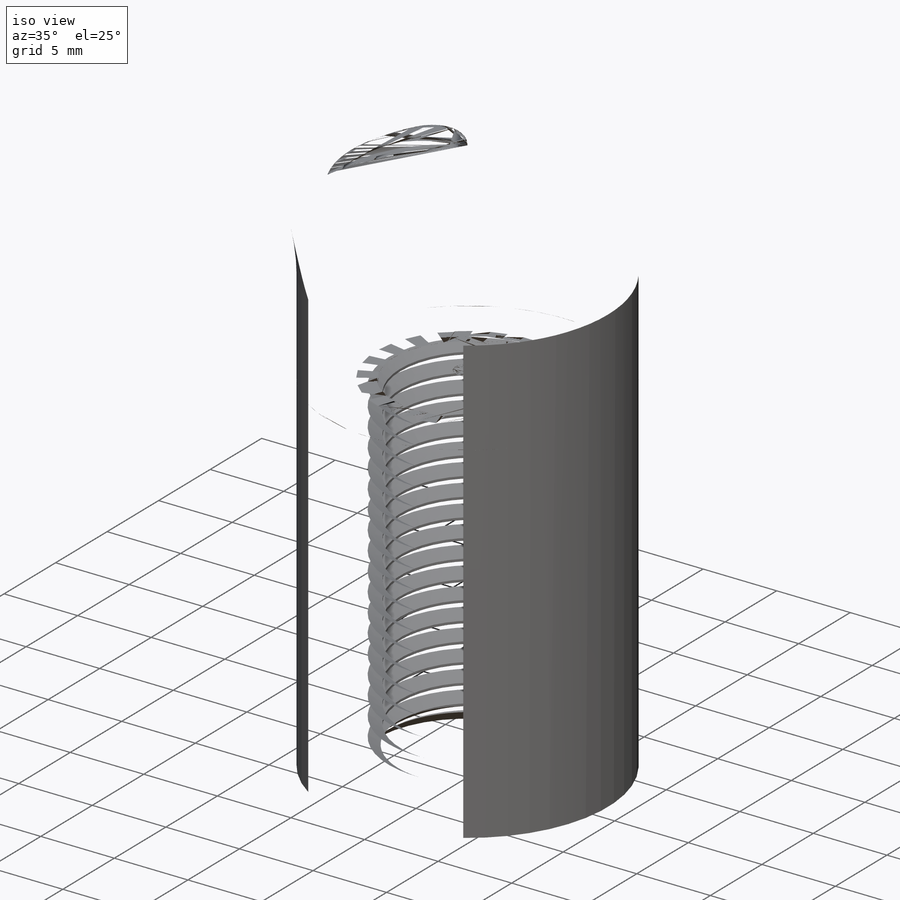
[diagram: iso view]
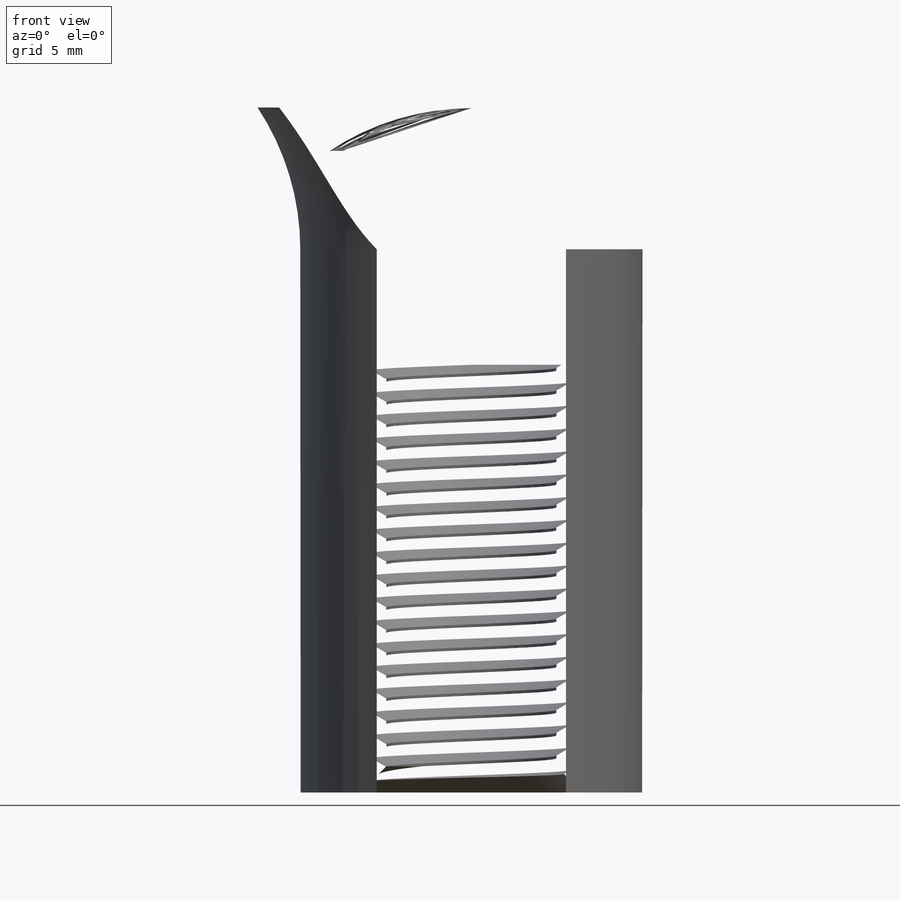
[diagram: front view]
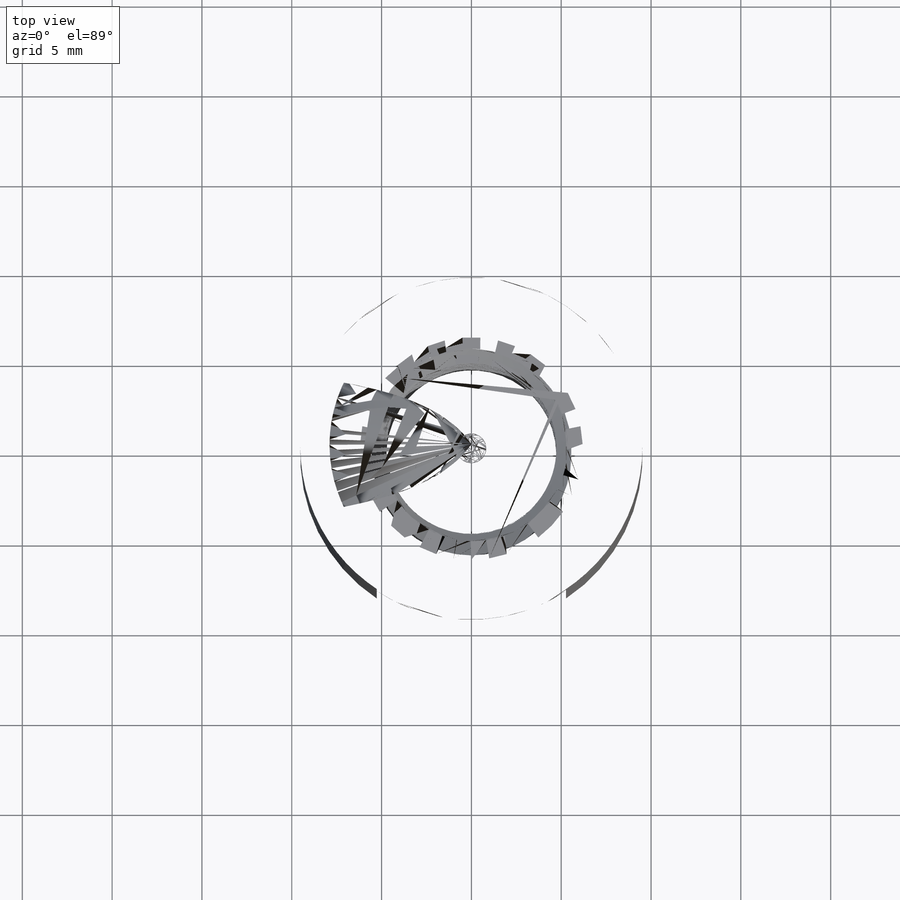
[diagram: top view]
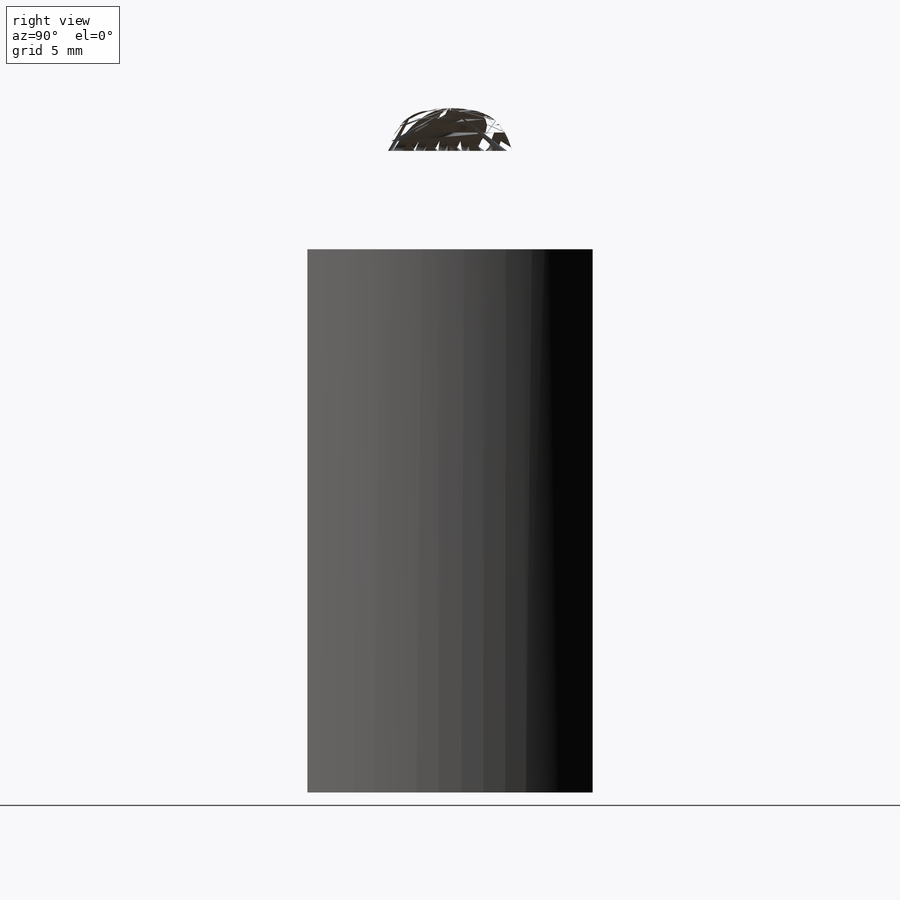
[diagram: right view]
SOLIDWORKS PART (.sldprt)
format: sldprt  version: not decoded by parser v0  size: 1,781,248 bytes
history: native  units: mm
features: sketch x14, cut_extrude x5, revolve x3, cut_revolve x2, material x1, helix x1, sweep x1, fillet x1, chamfer x1 (+13 scaffold rows collapsed)
feature tree (42):
  scaffold x13  (default folders/planes/origin — collapsed)
  material  "Cast Alloy Steel"
  sketch  "Sketch1"  dims[c1.A=11.1125mm c1.Ball Dia=20.6375mm c1.B=28.575mm c1.D=46.0375mm c1.E=23.8125mm c1.Thread Dia=2.0828mm c1.Wrench Flats=6.35mm c1.Base Dia=7.9248mm c1.Base Height=4.7498mm c2.Thread Dia=11.1252mm c2.Body Dia=19.05mm c2.Wrench Flats=15.875mm]
  revolve  "Revolve1"  Angle=360deg
  sketch  "Sketch12"
  cut_revolve  "Cut-Revolve1"  Angle=360deg
  sketch  "Sketch15"
  helix  "Helix/Spiral1"  Pitch=28.8925mm
  sketch  "Sketch16"  dims[c1.D1=~0.988564mm c2.D1=60.0deg c2.D2=~0.15875mm c2.D3=0.635mm]
  sweep  "Sweep1"
  sketch  "Sketch17"  dims[c1.D1=1.27mm c1.D2=~1.987692mm c2.D2=45.0deg]
  cut_revolve  "Cut-Revolve2"  Angle=360deg
  sketch  "Sketch14"
  cut_extrude  "Cut-Extrude5"  [1 undecoded]
  sketch  "Sketch4"  dims[D1=2.54mm]
  revolve  "Revolve2"  Angle=360deg
  sketch  "Sketch5"  dims[F=~10.31875mm D1=~16.66875mm]
  cut_extrude  "Cut-Extrude1"  [1 undecoded]
  fillet  "Fillet1"  Radius=16.66875mm
  sketch  "Sketch6"
  cut_extrude  "Cut-Extrude2"  [1 undecoded]
  sketch  "Sketch7"
  revolve  "Revolve3"  Angle=360deg
  sketch  "Sketch8"  dims[C=14.2875mm D1=5.2mm]
  cut_extrude  "Cut-Extrude3"  [1 undecoded]
  sketch  "Sketch10"
  cut_extrude  "Cut-Extrude4"  [1 undecoded]
  chamfer  "Chamfer1"  Distance=0.555625mm Angle=45deg
  sketch  "Sketch11"  dims[D1=2.54mm D2=~3.69202mm Swivel=21.0deg]
  sketch  "Sketch18"
decode coverage: 15 of 28 modeling features carry decoded parameters
note: ~ marks probable driven/reference dimensions
note: 5 parameter values undecoded
summary: no parameter record found for 5 features
note: suppression state not decoded; provenance and decode notes live in map.json
